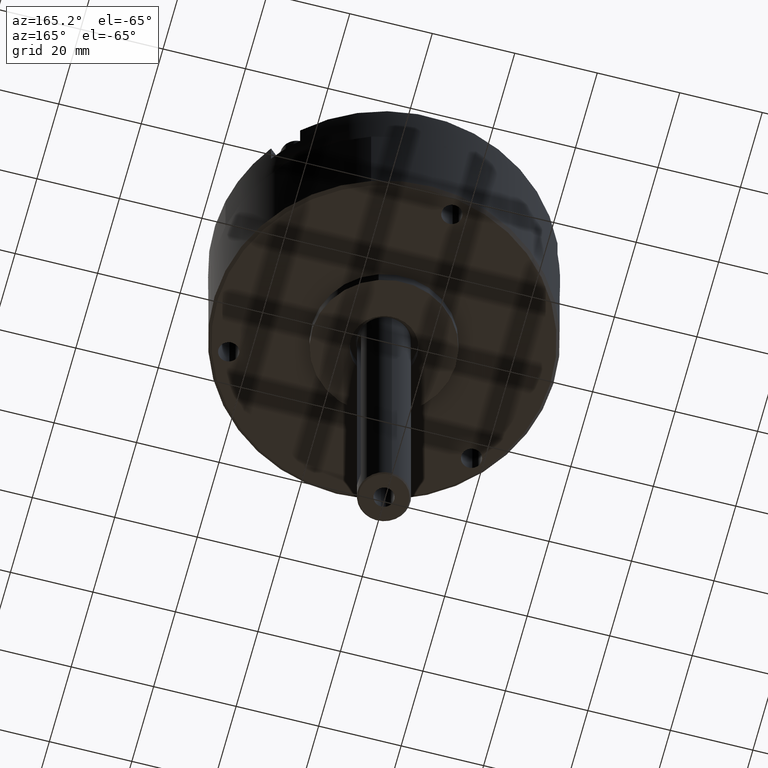
[diagram: clean part render]
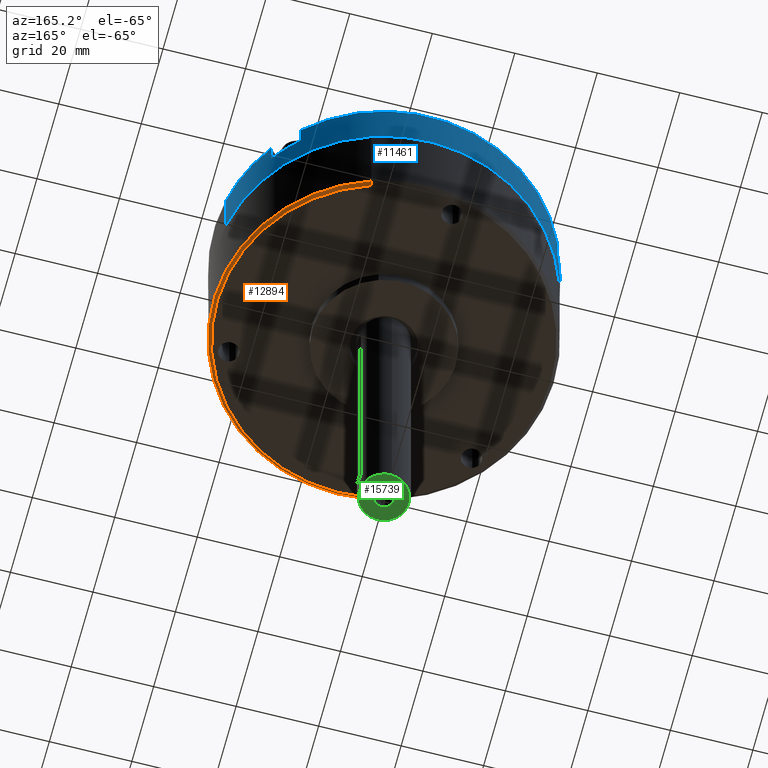
[diagram: same view with three faces highlighted in distinct colors, each labeled with its STEP entity id]
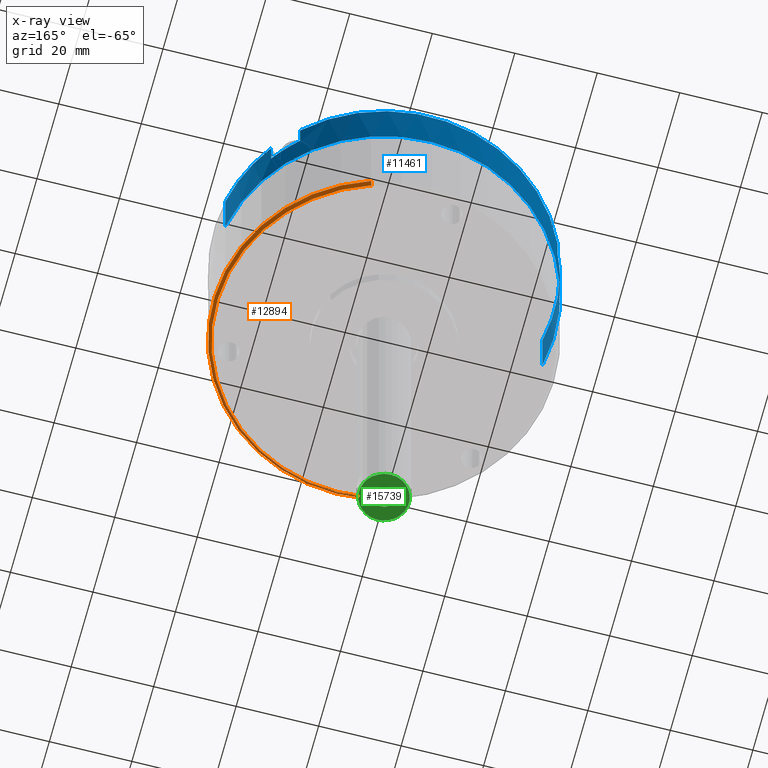
[diagram: x-ray of the same camera — body ghosted, the three highlighted faces saturated]
A machine part, auxiliary view with three faces highlighted in distinct colors.
The next image is the same camera in x-ray (body ghosted, the three faces saturated) — at least one of them is partly hidden behind the body in this view.
Their STEP definitions:

[orange] entity #12894 — the highlighted conical surface has half-angle 45 deg.
#458 = CARTESIAN_POINT ( 'NONE',  ( -1.625000000000000200, 1.990051048614448900E-016, 0.9687499999999981100 ) ) ;
#463 = CARTESIAN_POINT ( 'NONE',  ( 1.593749999999998400, 1.970915942377770300E-016, 1.000000000000000200 ) ) ;
#502 = DIRECTION ( 'NONE',  ( -0.7071067811865444600, 0.0000000000000000000, -0.7071067811865505700 ) ) ;
#503 = VECTOR ( 'NONE', #502, 39.37007874015748100 ) ;
#504 = CARTESIAN_POINT ( 'NONE',  ( -1.593749999999998400, 0.0000000000000000000, 1.000000000000000200 ) ) ;
#505 = CARTESIAN_POINT ( 'NONE',  ( -1.593749999999998400, 0.0000000000000000000, 1.000000000000000200 ) ) ;
#507 = LINE ( 'NONE', #504, #503 ) ;
#899 = DIRECTION ( 'NONE',  ( 0.7071067811865444600, 8.659560562354893400E-017, -0.7071067811865505700 ) ) ;
#900 = VECTOR ( 'NONE', #899, 39.37007874015748100 ) ;
#908 = CARTESIAN_POINT ( 'NONE',  ( 1.593749999999998400, 1.951780836141091900E-016, 1.000000000000000200 ) ) ;
#909 = LINE ( 'NONE', #908, #900 ) ;
#910 = CARTESIAN_POINT ( 'NONE',  ( 1.625000000000000200, 0.0000000000000000000, 0.9687499999999981100 ) ) ;
#2663 = AXIS2_PLACEMENT_3D ( 'NONE', #2699, #2698, #2697 ) ;
#2697 = DIRECTION ( 'NONE',  ( -1.000000000000000000, 0.0000000000000000000, 0.0000000000000000000 ) ) ;
#2698 = DIRECTION ( 'NONE',  ( 0.0000000000000000000, 0.0000000000000000000, -1.000000000000000000 ) ) ;
#2699 = CARTESIAN_POINT ( 'NONE',  ( 0.0000000000000000000, 0.0000000000000000000, 0.9687499999999981100 ) ) ;
#2714 = CIRCLE ( 'NONE', #2663, 1.625000000000000200 ) ;
#2720 = DIRECTION ( 'NONE',  ( -1.000000000000000000, 0.0000000000000000000, 0.0000000000000000000 ) ) ;
#2721 = DIRECTION ( 'NONE',  ( 0.0000000000000000000, 0.0000000000000000000, 1.000000000000000000 ) ) ;
#2722 = CARTESIAN_POINT ( 'NONE',  ( 0.0000000000000000000, 0.0000000000000000000, 1.000000000000000200 ) ) ;
#2723 = AXIS2_PLACEMENT_3D ( 'NONE', #2722, #2721, #2720 ) ;
#2730 = CIRCLE ( 'NONE', #2723, 1.593749999999998400 ) ;
#3872 = DIRECTION ( 'NONE',  ( 0.0000000000000000000, 0.0000000000000000000, -1.000000000000000000 ) ) ;
#3893 = AXIS2_PLACEMENT_3D ( 'NONE', #3918, #3872, #3907 ) ;
#3907 = DIRECTION ( 'NONE',  ( -1.000000000000000000, 0.0000000000000000000, 0.0000000000000000000 ) ) ;
#3911 = FACE_OUTER_BOUND ( 'NONE', #12895, .T. ) ;
#3912 = CONICAL_SURFACE ( 'NONE', #3893, 1.593749999999998400, 0.7853981633974439500 ) ;
#3918 = CARTESIAN_POINT ( 'NONE',  ( 0.0000000000000000000, 0.0000000000000000000, 1.000000000000000200 ) ) ;
#11124 = VERTEX_POINT ( 'NONE', #463 ) ;
#11125 = EDGE_CURVE ( 'NONE', #11136, #11132, #507, .T. ) ;
#11132 = VERTEX_POINT ( 'NONE', #458 ) ;
#11136 = VERTEX_POINT ( 'NONE', #505 ) ;
#11389 = VERTEX_POINT ( 'NONE', #910 ) ;
#11390 = EDGE_CURVE ( 'NONE', #11124, #11389, #909, .T. ) ;
#12238 = EDGE_CURVE ( 'NONE', #11389, #11132, #2714, .T. ) ;
#12257 = EDGE_CURVE ( 'NONE', #11136, #11124, #2730, .T. ) ;
#12894 = ADVANCED_FACE ( 'NONE', ( #3911 ), #3912, .T. ) ;
#12895 = EDGE_LOOP ( 'NONE', ( #12899, #12897, #12968, #12905 ) ) ;
#12897 = ORIENTED_EDGE ( 'NONE', *, *, #12257, .F. ) ;
#12899 = ORIENTED_EDGE ( 'NONE', *, *, #11390, .F. ) ;
#12905 = ORIENTED_EDGE ( 'NONE', *, *, #12238, .F. ) ;
#12968 = ORIENTED_EDGE ( 'NONE', *, *, #11125, .T. ) ;

[blue] entity #11461 — the highlighted cylindrical surface (partial cylindrical patch) has radius 41.275 mm, axis along (-0, 0, 1).
#924 = CARTESIAN_POINT ( 'NONE',  ( 0.0000000000000000000, 0.0000000000000000000, 0.5450000000000000400 ) ) ;
#955 = DIRECTION ( 'NONE',  ( 0.0000000000000000000, 0.0000000000000000000, 1.000000000000000000 ) ) ;
#956 = CARTESIAN_POINT ( 'NONE',  ( -1.318987145093644800, 0.9491564207641001200, 0.3200000000000000600 ) ) ;
#957 = LINE ( 'NONE', #956, #1003 ) ;
#958 = CARTESIAN_POINT ( 'NONE',  ( 1.318987145093644800, 0.9491564207641004500, 0.3200000000000000600 ) ) ;
#959 = LINE ( 'NONE', #958, #997 ) ;
#960 = CIRCLE ( 'NONE', #964, 1.625000000000000200 ) ;
#961 = DIRECTION ( 'NONE',  ( 1.000000000000000000, 0.0000000000000000000, 0.0000000000000000000 ) ) ;
#962 = DIRECTION ( 'NONE',  ( 0.0000000000000000000, 0.0000000000000000000, 1.000000000000000000 ) ) ;
#963 = CARTESIAN_POINT ( 'NONE',  ( 0.0000000000000000000, 0.0000000000000000000, 0.3200000000000000600 ) ) ;
#964 = AXIS2_PLACEMENT_3D ( 'NONE', #924, #955, #1007 ) ;
#965 = AXIS2_PLACEMENT_3D ( 'NONE', #963, #962, #961 ) ;
#969 = CARTESIAN_POINT ( 'NONE',  ( 1.481487145093644700, 0.6676981645341579800, 0.3200000000000000600 ) ) ;
#973 = CARTESIAN_POINT ( 'NONE',  ( -1.318987145093644800, 0.9491564207641001200, 0.3200000000000000600 ) ) ;
#978 = CIRCLE ( 'NONE', #965, 1.625000000000000200 ) ;
#979 = CARTESIAN_POINT ( 'NONE',  ( -1.318987145093644800, 0.9491564207641001200, 0.5450000000000000400 ) ) ;
#981 = CARTESIAN_POINT ( 'NONE',  ( -1.481487145093644700, 0.6676981645341576500, 0.5450000000000000400 ) ) ;
#982 = DIRECTION ( 'NONE',  ( 1.000000000000000000, 0.0000000000000000000, 0.0000000000000000000 ) ) ;
#983 = DIRECTION ( 'NONE',  ( 0.0000000000000000000, 0.0000000000000000000, 1.000000000000000000 ) ) ;
#984 = CARTESIAN_POINT ( 'NONE',  ( 0.0000000000000000000, 0.0000000000000000000, 0.5450000000000000400 ) ) ;
#985 = DIRECTION ( 'NONE',  ( 1.000000000000000000, 0.0000000000000000000, 0.0000000000000000000 ) ) ;
#986 = DIRECTION ( 'NONE',  ( 0.0000000000000000000, 0.0000000000000000000, 1.000000000000000000 ) ) ;
#987 = CARTESIAN_POINT ( 'NONE',  ( 0.0000000000000000000, 0.0000000000000000000, 0.0000000000000000000 ) ) ;
#988 = AXIS2_PLACEMENT_3D ( 'NONE', #984, #983, #982 ) ;
#989 = CIRCLE ( 'NONE', #988, 1.625000000000000200 ) ;
#990 = AXIS2_PLACEMENT_3D ( 'NONE', #987, #986, #985 ) ;
#991 = DIRECTION ( 'NONE',  ( 1.000000000000000000, 0.0000000000000000000, 0.0000000000000000000 ) ) ;
#992 = DIRECTION ( 'NONE',  ( 0.0000000000000000000, 0.0000000000000000000, 1.000000000000000000 ) ) ;
#993 = CARTESIAN_POINT ( 'NONE',  ( 0.0000000000000000000, 0.0000000000000000000, 0.3200000000000000600 ) ) ;
#994 = CARTESIAN_POINT ( 'NONE',  ( 1.481487145093644700, 0.6676981645341579800, 0.5450000000000000400 ) ) ;
#995 = AXIS2_PLACEMENT_3D ( 'NONE', #993, #992, #991 ) ;
#996 = DIRECTION ( 'NONE',  ( -0.0000000000000000000, -0.0000000000000000000, 1.000000000000000000 ) ) ;
#997 = VECTOR ( 'NONE', #996, 39.37007874015748100 ) ;
#998 = CIRCLE ( 'NONE', #995, 1.625000000000000700 ) ;
#999 = CARTESIAN_POINT ( 'NONE',  ( 1.318987145093644800, 0.9491564207641004500, 0.3200000000000000600 ) ) ;
#1002 = DIRECTION ( 'NONE',  ( -0.0000000000000000000, -0.0000000000000000000, 1.000000000000000000 ) ) ;
#1003 = VECTOR ( 'NONE', #1002, 39.37007874015748100 ) ;
#1004 = CARTESIAN_POINT ( 'NONE',  ( 1.625000000000000200, 0.0000000000000000000, 0.5450000000000000400 ) ) ;
#1005 = CARTESIAN_POINT ( 'NONE',  ( 1.318987145093644800, 0.9491564207641003400, 0.5450000000000000400 ) ) ;
#1006 = CIRCLE ( 'NONE', #990, 1.625000000000000200 ) ;
#1007 = DIRECTION ( 'NONE',  ( 1.000000000000000000, 0.0000000000000000000, 0.0000000000000000000 ) ) ;
#1013 = DIRECTION ( 'NONE',  ( 0.0000000000000000000, 0.0000000000000000000, 1.000000000000000000 ) ) ;
#1014 = VECTOR ( 'NONE', #1013, 39.37007874015748100 ) ;
#1015 = CARTESIAN_POINT ( 'NONE',  ( -1.625000000000000200, 1.990051048614449400E-016, 0.0000000000000000000 ) ) ;
#1016 = CARTESIAN_POINT ( 'NONE',  ( -1.625000000000000200, 1.990051048614449400E-016, 0.5450000000000000400 ) ) ;
#1020 = CARTESIAN_POINT ( 'NONE',  ( -1.625000000000000200, 1.990051048614449400E-016, 0.0000000000000000000 ) ) ;
#1022 = DIRECTION ( 'NONE',  ( 1.000000000000000000, 0.0000000000000000000, 0.0000000000000000000 ) ) ;
#1023 = FACE_OUTER_BOUND ( 'NONE', #11458, .T. ) ;
#1026 = CARTESIAN_POINT ( 'NONE',  ( -1.481487145093644700, 0.6676981645341576500, 0.3200000000000000600 ) ) ;
#1027 = CARTESIAN_POINT ( 'NONE',  ( 0.0000000000000000000, 0.0000000000000000000, 0.0000000000000000000 ) ) ;
#1028 = LINE ( 'NONE', #1015, #1014 ) ;
#1029 = AXIS2_PLACEMENT_3D ( 'NONE', #1027, #1040, #1022 ) ;
#1034 = CYLINDRICAL_SURFACE ( 'NONE', #1029, 1.625000000000000200 ) ;
#1040 = DIRECTION ( 'NONE',  ( 0.0000000000000000000, 0.0000000000000000000, 1.000000000000000000 ) ) ;
#1041 = DIRECTION ( 'NONE',  ( -0.0000000000000000000, -0.0000000000000000000, 1.000000000000000000 ) ) ;
#1042 = VECTOR ( 'NONE', #1041, 39.37007874015748100 ) ;
#1043 = CARTESIAN_POINT ( 'NONE',  ( -1.481487145093644700, 0.6676981645341576500, 0.3200000000000000600 ) ) ;
#1044 = LINE ( 'NONE', #1043, #1042 ) ;
#1078 = AXIS2_PLACEMENT_3D ( 'NONE', #1119, #1118, #1117 ) ;
#1082 = CIRCLE ( 'NONE', #1078, 1.625000000000000200 ) ;
#1114 = DIRECTION ( 'NONE',  ( 0.0000000000000000000, 0.0000000000000000000, 1.000000000000000000 ) ) ;
#1115 = VECTOR ( 'NONE', #1114, 39.37007874015748100 ) ;
#1117 = DIRECTION ( 'NONE',  ( 1.000000000000000000, 0.0000000000000000000, 0.0000000000000000000 ) ) ;
#1118 = DIRECTION ( 'NONE',  ( 0.0000000000000000000, 0.0000000000000000000, 1.000000000000000000 ) ) ;
#1119 = CARTESIAN_POINT ( 'NONE',  ( 0.0000000000000000000, 0.0000000000000000000, 0.5450000000000000400 ) ) ;
#1123 = CARTESIAN_POINT ( 'NONE',  ( 1.625000000000000200, 0.0000000000000000000, 0.0000000000000000000 ) ) ;
#1124 = LINE ( 'NONE', #1123, #1115 ) ;
#1133 = DIRECTION ( 'NONE',  ( -0.0000000000000000000, -0.0000000000000000000, 1.000000000000000000 ) ) ;
#1134 = VECTOR ( 'NONE', #1133, 39.37007874015748100 ) ;
#1135 = CARTESIAN_POINT ( 'NONE',  ( 1.481487145093644700, 0.6676981645341579800, 0.3200000000000000600 ) ) ;
#1136 = LINE ( 'NONE', #1135, #1134 ) ;
#8242 = CARTESIAN_POINT ( 'NONE',  ( 1.625000000000000200, 0.0000000000000000000, 0.0000000000000000000 ) ) ;
#11425 = EDGE_CURVE ( 'NONE', #11428, #11460, #978, .T. ) ;
#11426 = VERTEX_POINT ( 'NONE', #969 ) ;
#11427 = ORIENTED_EDGE ( 'NONE', *, *, #11439, .F. ) ;
#11428 = VERTEX_POINT ( 'NONE', #973 ) ;
#11429 = VERTEX_POINT ( 'NONE', #979 ) ;
#11430 = ORIENTED_EDGE ( 'NONE', *, *, #11500, .F. ) ;
#11431 = ORIENTED_EDGE ( 'NONE', *, *, #11433, .T. ) ;
#11432 = EDGE_CURVE ( 'NONE', #11434, #11429, #960, .T. ) ;
#11433 = EDGE_CURVE ( 'NONE', #11428, #11429, #957, .T. ) ;
#11434 = VERTEX_POINT ( 'NONE', #1005 ) ;
#11435 = VERTEX_POINT ( 'NONE', #1004 ) ;
#11437 = VERTEX_POINT ( 'NONE', #999 ) ;
#11438 = ORIENTED_EDGE ( 'NONE', *, *, #11432, .F. ) ;
#11439 = EDGE_CURVE ( 'NONE', #11437, #11434, #959, .T. ) ;
#11440 = ORIENTED_EDGE ( 'NONE', *, *, #11442, .F. ) ;
#11441 = ORIENTED_EDGE ( 'NONE', *, *, #11497, .T. ) ;
#11442 = EDGE_CURVE ( 'NONE', #11426, #11437, #998, .T. ) ;
#11443 = VERTEX_POINT ( 'NONE', #994 ) ;
#11445 = EDGE_CURVE ( 'NONE', #15892, #11462, #1006, .T. ) ;
#11446 = ORIENTED_EDGE ( 'NONE', *, *, #11425, .F. ) ;
#11447 = ORIENTED_EDGE ( 'NONE', *, *, #11448, .F. ) ;
#11448 = EDGE_CURVE ( 'NONE', #11449, #11465, #989, .T. ) ;
#11449 = VERTEX_POINT ( 'NONE', #981 ) ;
#11450 = EDGE_CURVE ( 'NONE', #11460, #11449, #1044, .T. ) ;
#11453 = ORIENTED_EDGE ( 'NONE', *, *, #11450, .F. ) ;
#11458 = EDGE_LOOP ( 'NONE', ( #15964, #11463, #11447, #11453, #11446, #11431, #11438, #11427, #11440, #11441, #11430, #11506 ) ) ;
#11460 = VERTEX_POINT ( 'NONE', #1026 ) ;
#11461 = ADVANCED_FACE ( 'NONE', ( #1023 ), #1034, .T. ) ;
#11462 = VERTEX_POINT ( 'NONE', #1020 ) ;
#11463 = ORIENTED_EDGE ( 'NONE', *, *, #11464, .T. ) ;
#11464 = EDGE_CURVE ( 'NONE', #11462, #11465, #1028, .T. ) ;
#11465 = VERTEX_POINT ( 'NONE', #1016 ) ;
#11497 = EDGE_CURVE ( 'NONE', #11426, #11443, #1136, .T. ) ;
#11500 = EDGE_CURVE ( 'NONE', #11435, #11443, #1082, .T. ) ;
#11503 = EDGE_CURVE ( 'NONE', #15892, #11435, #1124, .T. ) ;
#11506 = ORIENTED_EDGE ( 'NONE', *, *, #11503, .F. ) ;
#15892 = VERTEX_POINT ( 'NONE', #8242 ) ;
#15964 = ORIENTED_EDGE ( 'NONE', *, *, #11445, .T. ) ;

[green] entity #15739 — the highlighted planar face has unit normal (0, 0, -1).
#20 = VERTEX_POINT ( 'NONE', #15080 ) ;
#45 = EDGE_CURVE ( 'NONE', #53, #20, #15148, .T. ) ;
#53 = VERTEX_POINT ( 'NONE', #15147 ) ;
#92 = VERTEX_POINT ( 'NONE', #15188 ) ;
#93 = VERTEX_POINT ( 'NONE', #15154 ) ;
#133 = EDGE_CURVE ( 'NONE', #93, #92, #15286, .T. ) ;
#8113 = AXIS2_PLACEMENT_3D ( 'NONE', #8146, #8145, #8195 ) ;
#8145 = DIRECTION ( 'NONE',  ( 0.0000000000000000000, 0.0000000000000000000, 1.000000000000000000 ) ) ;
#8146 = CARTESIAN_POINT ( 'NONE',  ( 0.0000000000000000000, 0.0000000000000000000, 4.229999999999999500 ) ) ;
#8153 = FACE_BOUND ( 'NONE', #15788, .T. ) ;
#8178 = DIRECTION ( 'NONE',  ( 1.000000000000000000, 0.0000000000000000000, 0.0000000000000000000 ) ) ;
#8179 = DIRECTION ( 'NONE',  ( -0.0000000000000000000, -0.0000000000000000000, 1.000000000000000000 ) ) ;
#8180 = CARTESIAN_POINT ( 'NONE',  ( 0.0000000000000000000, 0.0000000000000000000, 4.229999999999999500 ) ) ;
#8181 = AXIS2_PLACEMENT_3D ( 'NONE', #8180, #8179, #8178 ) ;
#8187 = DIRECTION ( 'NONE',  ( 1.000000000000000000, 0.0000000000000000000, 0.0000000000000000000 ) ) ;
#8188 = DIRECTION ( 'NONE',  ( 0.0000000000000000000, 0.0000000000000000000, 1.000000000000000000 ) ) ;
#8189 = CARTESIAN_POINT ( 'NONE',  ( 0.0000000000000000000, 0.0000000000000000000, 4.229999999999999500 ) ) ;
#8194 = CIRCLE ( 'NONE', #8181, 0.09800000000000001800 ) ;
#8195 = DIRECTION ( 'NONE',  ( 1.000000000000000000, 0.0000000000000000000, -0.0000000000000000000 ) ) ;
#8196 = AXIS2_PLACEMENT_3D ( 'NONE', #8189, #8188, #8187 ) ;
#8199 = CIRCLE ( 'NONE', #8196, 0.2375000000013466600 ) ;
#8204 = FACE_OUTER_BOUND ( 'NONE', #15747, .T. ) ;
#8206 = PLANE ( 'NONE',  #8113 ) ;
#15080 = CARTESIAN_POINT ( 'NONE',  ( -0.2375000000013466600, 0.0000000000000000000, 4.229999999999999500 ) ) ;
#15091 = CARTESIAN_POINT ( 'NONE',  ( 0.0000000000000000000, 0.0000000000000000000, 4.229999999999999500 ) ) ;
#15136 = DIRECTION ( 'NONE',  ( 1.000000000000000000, 0.0000000000000000000, 0.0000000000000000000 ) ) ;
#15137 = DIRECTION ( 'NONE',  ( 0.0000000000000000000, 0.0000000000000000000, 1.000000000000000000 ) ) ;
#15138 = AXIS2_PLACEMENT_3D ( 'NONE', #15091, #15137, #15136 ) ;
#15147 = CARTESIAN_POINT ( 'NONE',  ( 0.2375000000013466600, 2.985076572929919400E-017, 4.229999999999999500 ) ) ;
#15148 = CIRCLE ( 'NONE', #15138, 0.2375000000013466600 ) ;
#15154 = CARTESIAN_POINT ( 'NONE',  ( -0.09800000000000003200, 1.200153863164406600E-017, 4.229999999999999500 ) ) ;
#15188 = CARTESIAN_POINT ( 'NONE',  ( 0.09800000000000001800, 0.0000000000000000000, 4.229999999999999500 ) ) ;
#15279 = DIRECTION ( 'NONE',  ( 1.000000000000000000, 0.0000000000000000000, 0.0000000000000000000 ) ) ;
#15280 = DIRECTION ( 'NONE',  ( -0.0000000000000000000, -0.0000000000000000000, 1.000000000000000000 ) ) ;
#15281 = AXIS2_PLACEMENT_3D ( 'NONE', #15309, #15280, #15279 ) ;
#15286 = CIRCLE ( 'NONE', #15281, 0.09800000000000001800 ) ;
#15309 = CARTESIAN_POINT ( 'NONE',  ( 0.0000000000000000000, 0.0000000000000000000, 4.229999999999999500 ) ) ;
#15736 = ORIENTED_EDGE ( 'NONE', *, *, #45, .T. ) ;
#15739 = ADVANCED_FACE ( 'NONE', ( #8204, #8153 ), #8206, .T. ) ;
#15740 = EDGE_CURVE ( 'NONE', #20, #53, #8199, .T. ) ;
#15747 = EDGE_LOOP ( 'NONE', ( #15785, #15736 ) ) ;
#15750 = EDGE_CURVE ( 'NONE', #92, #93, #8194, .T. ) ;
#15781 = ORIENTED_EDGE ( 'NONE', *, *, #133, .F. ) ;
#15782 = ORIENTED_EDGE ( 'NONE', *, *, #15750, .F. ) ;
#15785 = ORIENTED_EDGE ( 'NONE', *, *, #15740, .T. ) ;
#15788 = EDGE_LOOP ( 'NONE', ( #15782, #15781 ) ) ;